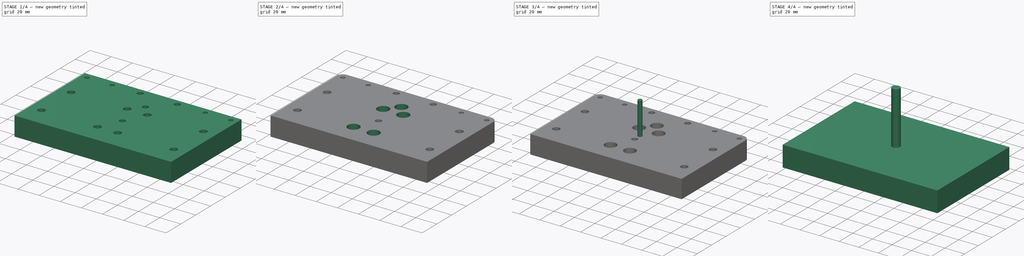
[diagram: build sequence overview — one tinted view per stage of 4, left to right]
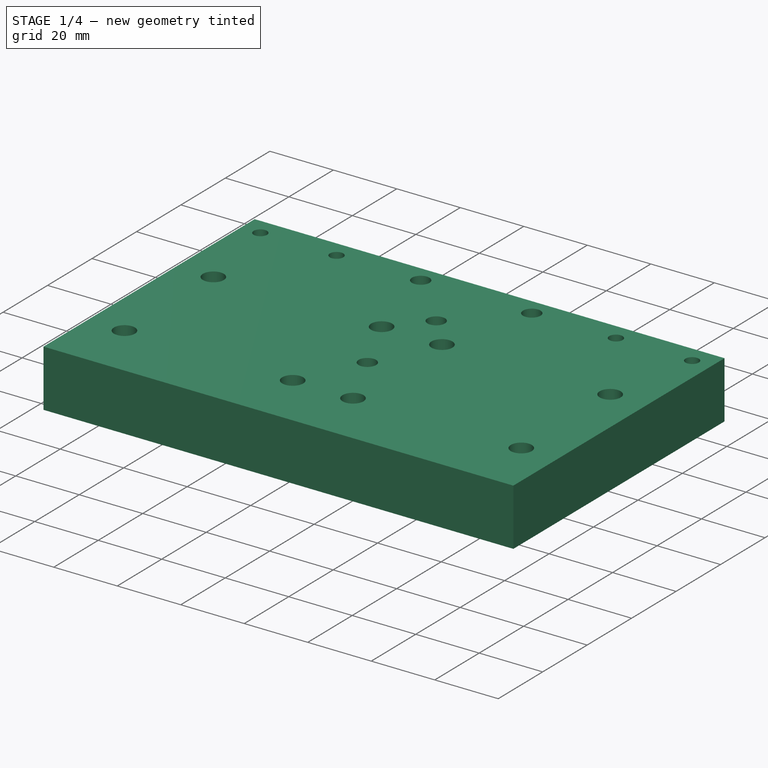
[diagram: stage 1 of 4 — iso view after this stage's code; geometry added in this stage tinted green]
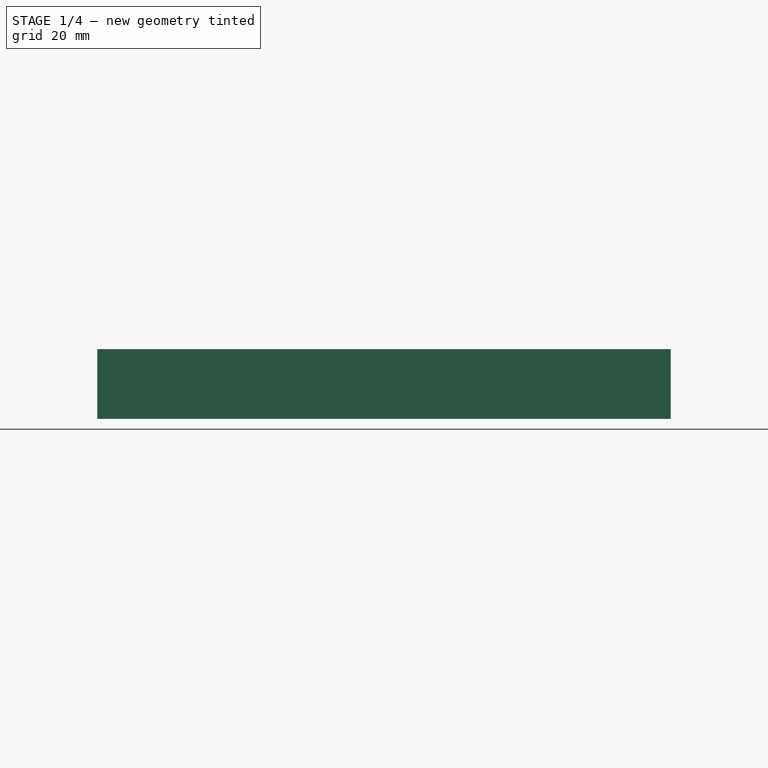
[diagram: stage 1 of 4 — front view after this stage's code; geometry added in this stage tinted green]
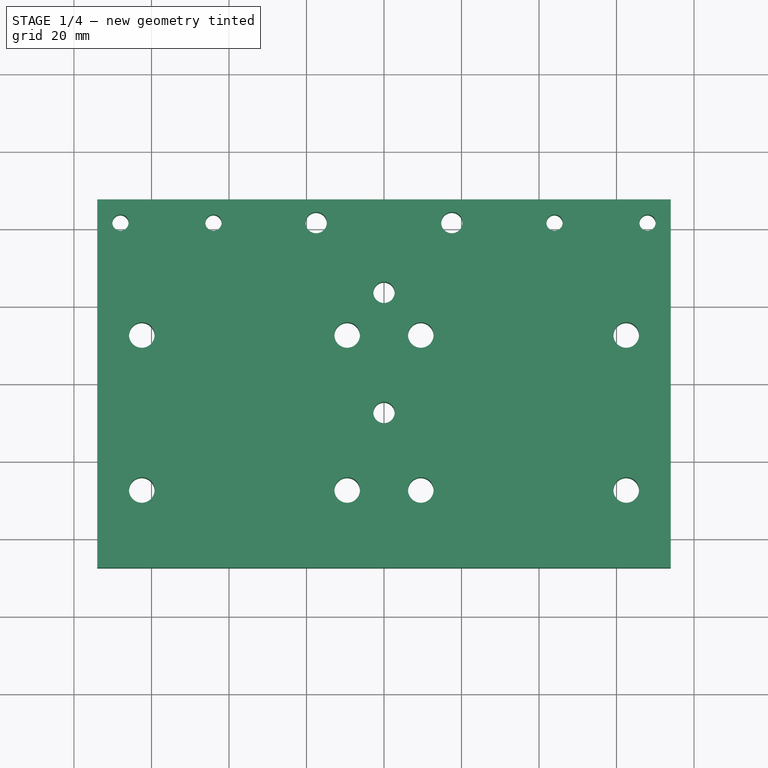
[diagram: stage 1 of 4 — top view after this stage's code; geometry added in this stage tinted green]
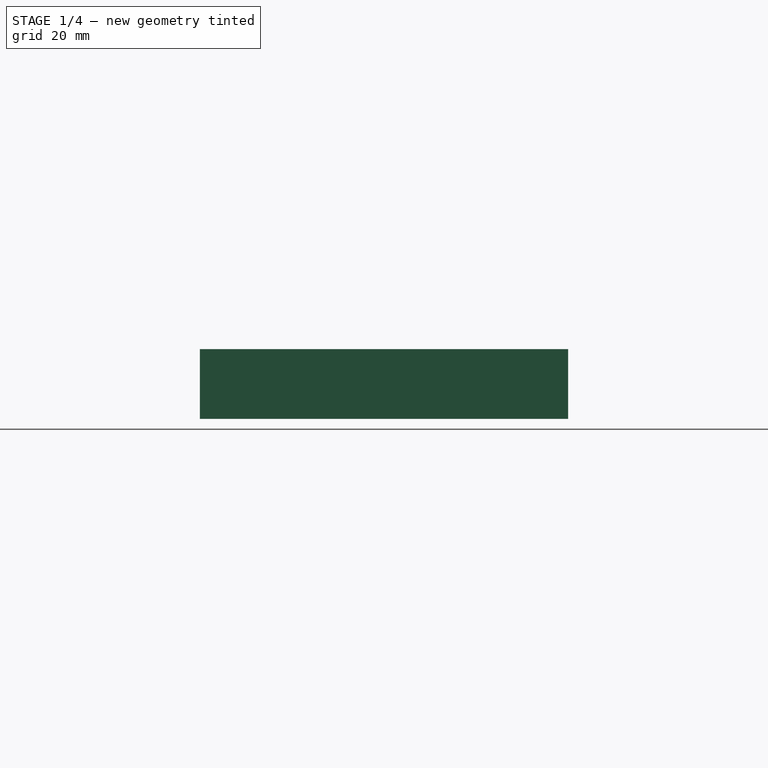
[diagram: stage 1 of 4 — right view after this stage's code; geometry added in this stage tinted green]
FCSTD DOCUMENT  (FreeCAD 0.20R27422 (Git))
Label: tram_plate_wood
License: All rights reserved
LicenseURL: http://en.wikipedia.org/wiki/All_rights_reserved
objects: Path::FeaturePython×10, Sketcher::SketchObject×4, Part::FeaturePython×4, PartDesign::Pocket×3, App::DocumentObjectGroup×2, PartDesign::Pad×1, App::FeaturePython×1, PartDesign::Fillet×1, PartDesign::Body×1, Path::FeatureCompoundPython×1
note: 22 computed .brp shape members not serialized (recipe doc carries the construction recipe); baked Part::Feature solids carry a one-line shape summary decoded from their .brp

FEATURE [Sketcher::SketchObject] Sketch
  FullyConstrained = true
  MapMode = 5
  Support = -> [XY_Plane]
  sketch-geometry (5):
    g0: LineSegment StartX=74 StartY=-47.5 StartZ=0 EndX=74 EndY=47.5 EndZ=0
    g1: LineSegment StartX=74 StartY=47.5 StartZ=0 EndX=-74 EndY=47.5 EndZ=0
    g2: LineSegment StartX=-74 StartY=47.5 StartZ=0 EndX=-74 EndY=-47.5 EndZ=0
    g3: LineSegment StartX=-74 StartY=-47.5 StartZ=0 EndX=74 EndY=-47.5 EndZ=0
    g4: GeomPoint X=1e-16 Y=0 Z=0
  constraints (12):
    c: Coincident(g0,g1)
    c: Coincident(g1,g2)
    c: Coincident(g2,g3)
    c: Coincident(g3,g0)
    c: Horizontal(g1)
    c: Horizontal(g3)
    c: Vertical(g0)
    c: Vertical(g2)
    c: Symmetric(g1,g0,g4)
    c: Coincident(g4,g-1)
    c: DistanceX(g1,g1) = 148
    c: DistanceY(g2,g2) = 95
FEATURE [PartDesign::Pad] Pad
  Direction = (0,0,1)
  Length = 18
  Length2 = 10
  Profile = -> Sketch
  ReferenceAxis = -> Sketch [N_Axis]
  Type = 0
FEATURE [Sketcher::SketchObject] Sketch001
  ExternalGeometry = -> [Pad]
  FullyConstrained = true
  MapMode = 5
  Placement = pos=(0,0,18) rot=(0,0,1;0rad)
  Support = -> [Pad]
  sketch-geometry (28):
    g0: Circle CenterX=-62.5 CenterY=12.5 CenterZ=0 NormalX=0 NormalY=0 NormalZ=1 AngleXU=0 Radius=3.3
    g1: Circle CenterX=-62.5 CenterY=-27.5 CenterZ=0 NormalX=0 NormalY=0 NormalZ=1 AngleXU=0 Radius=3.3
    g2: LineSegment StartX=-62.5 StartY=12.5 StartZ=0 EndX=-62.5 EndY=-27.5 EndZ=0
    g3: LineSegment StartX=-62.5 StartY=-27.5 StartZ=0 EndX=-62.5 EndY=-47.5 EndZ=0
    g4: LineSegment StartX=-74 StartY=-47.5 StartZ=0 EndX=-62.5 EndY=-47.5 EndZ=0
    g5: LineSegment StartX=0 StartY=0 StartZ=0 EndX=0 EndY=-47.5 EndZ=0
    g6: LineSegment StartX=-62.5 StartY=-27.5 StartZ=0 EndX=0 EndY=-27.5 EndZ=0
    g7: LineSegment StartX=0 StartY=0 StartZ=0 EndX=0 EndY=47.5 EndZ=0
    g8: LineSegment StartX=-62.5 StartY=12.5 StartZ=0 EndX=0 EndY=12.5 EndZ=0
    g9: LineSegment StartX=-9.5 StartY=12.5 StartZ=0 EndX=-9.5 EndY=-27.5 EndZ=0
    g10: Circle CenterX=-9.5 CenterY=12.5 CenterZ=0 NormalX=0 NormalY=0 NormalZ=1 AngleXU=0 Radius=3.3
    g11: Circle CenterX=-9.5 CenterY=-27.5 CenterZ=0 NormalX=0 NormalY=0 NormalZ=1 AngleXU=0 Radius=3.3
    g12: Circle CenterX=0 CenterY=-7.5 CenterZ=0 NormalX=0 NormalY=0 NormalZ=1 AngleXU=0 Radius=2.75
    g13: Circle CenterX=0 CenterY=23.5 CenterZ=0 NormalX=0 NormalY=0 NormalZ=1 AngleXU=0 Radius=2.75
    g14: LineSegment StartX=-68 StartY=41.5 StartZ=0 EndX=-44 EndY=41.5 EndZ=0
    g15: LineSegment StartX=-44 StartY=41.5 StartZ=0 EndX=-17.5 EndY=41.5 EndZ=0
    g16: Circle CenterX=-68 CenterY=41.5 CenterZ=0 NormalX=0 NormalY=0 NormalZ=1 AngleXU=0 Radius=2.1
    g17: Circle CenterX=-44 CenterY=41.5 CenterZ=0 NormalX=0 NormalY=0 NormalZ=1 AngleXU=0 Radius=2.1
    g18: Circle CenterX=-17.5 CenterY=41.5 CenterZ=0 NormalX=0 NormalY=0 NormalZ=1 AngleXU=0 Radius=2.75
    g19: LineSegment StartX=-44 StartY=41.5 StartZ=0 EndX=-44 EndY=47.5 EndZ=0
    g20: LineSegment StartX=-17.5 StartY=41.5 StartZ=0 EndX=0 EndY=41.5 EndZ=0
    g21: Circle CenterX=9.5 CenterY=-27.5 CenterZ=0 NormalX=0 NormalY=0 NormalZ=1 AngleXU=0 Radius=3.3
    g22: Circle CenterX=9.5 CenterY=12.5 CenterZ=0 NormalX=0 NormalY=0 NormalZ=1 AngleXU=0 Radius=3.3
    g23: Circle CenterX=17.5 CenterY=41.5 CenterZ=0 NormalX=0 NormalY=0 NormalZ=1 AngleXU=0 Radius=2.75
    g24: Circle CenterX=44 CenterY=41.5 CenterZ=0 NormalX=0 NormalY=0 NormalZ=1 AngleXU=0 Radius=2.1
    g25: Circle CenterX=68 CenterY=41.5 CenterZ=0 NormalX=0 NormalY=0 NormalZ=1 AngleXU=0 Radius=2.1
    g26: Circle CenterX=62.5 CenterY=12.5 CenterZ=0 NormalX=0 NormalY=0 NormalZ=1 AngleXU=0 Radius=3.3
    g27: Circle CenterX=62.5 CenterY=-27.5 CenterZ=0 NormalX=0 NormalY=0 NormalZ=1 AngleXU=0 Radius=3.3
  constraints (73):
    c: Coincident(g2,g0)
    c: Coincident(g2,g1)
    c: Vertical(g2)
    c: Equal(g0,g1)
    c: Diameter(g1) = 6.6
    c: Coincident(g3,g1)
    c: Vertical(g3)
    c: Coincident(g4,g-4)
    c: Coincident(g4,g3)
    c: Horizontal(g4)
    c: DistanceY(g3,g3) = 20
    c: Coincident(g5,g-1)
    c: PointOnObject(g5,g-3)
    c: Vertical(g5)
    c: DistanceX(g3,g5) = 62.5
    c: Coincident(g6,g1)
    c: PointOnObject(g6,g5)
    c: Horizontal(g6)
    c: PointOnObject(g7,g5)
    c: Vertical(g7)
    c: Coincident(g8,g0)
    c: PointOnObject(g8,g7)
    c: Horizontal(g8)
    c: PointOnObject(g9,g8)
    c: PointOnObject(g9,g6)
    c: Vertical(g9)
    c: Coincident(g10,g9)
    c: Coincident(g11,g9)
    c: Equal(g10,g0)
    c: Equal(g11,g1)
    c: DistanceX(g9,g6) = 9.5
    c: DistanceY(g9,g9) = 40
    c: PointOnObject(g12,g5)
    c: Diameter(g12) = 5.5
    c: DistanceY(g5,g12) = 40
    c: PointOnObject(g13,g7)
    c: Equal(g13,g12)
    c: DistanceY(g13,g7) = 24
    c: Horizontal(g14)
    c: Coincident(g15,g14)
    c: Horizontal(g15)
    c: Coincident(g16,g14)
    c: Coincident(g17,g14)
    c: Coincident(g18,g15)
    c: Diameter(g16) = 4.2
    c: Equal(g17,g16)
    c: Equal(g18,g13)
    c: DistanceX(g14,g14) = 24
    c: DistanceX(g15,g15) = 26.5
    c: Coincident(g19,g14)
    c: PointOnObject(g19,g-6)
    c: Vertical(g19)
    c: DistanceY(g19,g19) = 6
    c: Coincident(g20,g15)
    c: PointOnObject(g20,g7)
    c: Horizontal(g20)
    c: DistanceX(g14,g20) = 68
    c: PointOnObject(g7,g-6)
    c: Horizontal(g5,g7)
    c: Symmetric(g11,g21,g5)
    c: Equal(g11,g21)
    c: Symmetric(g22,g10,g7)
    c: Equal(g22,g10)
    c: Equal(g27,g26)
    c: Equal(g26,g22)
    c: Equal(g23,g18)
    c: Equal(g24,g25)
    c: Equal(g25,g17)
    c: Symmetric(g23,g18,g7)
    c: Symmetric(g24,g17,g7)
    c: Symmetric(g25,g16,g7)
    c: Symmetric(g26,g0,g7)
    c: Symmetric(g27,g1,g5)
FEATURE [PartDesign::Pocket] Pocket
  BaseFeature = -> Pad
  Direction = (0,0,-1)
  Length = 18
  Length2 = 5
  Profile = -> Sketch001
  ReferenceAxis = -> Sketch001 [N_Axis]
  Type = 1
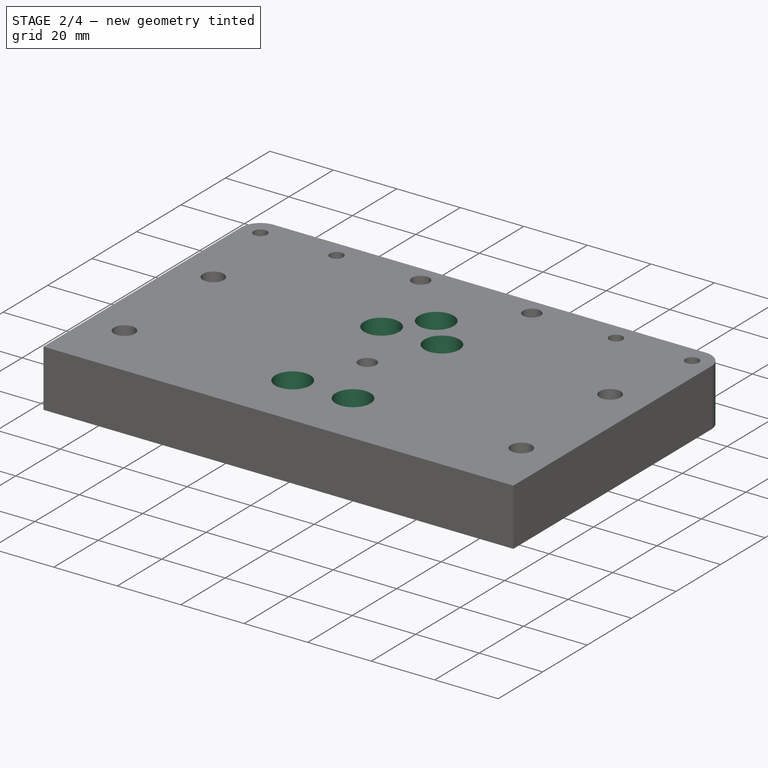
[diagram: stage 2 of 4 — iso view after this stage's code; geometry added in this stage tinted green]
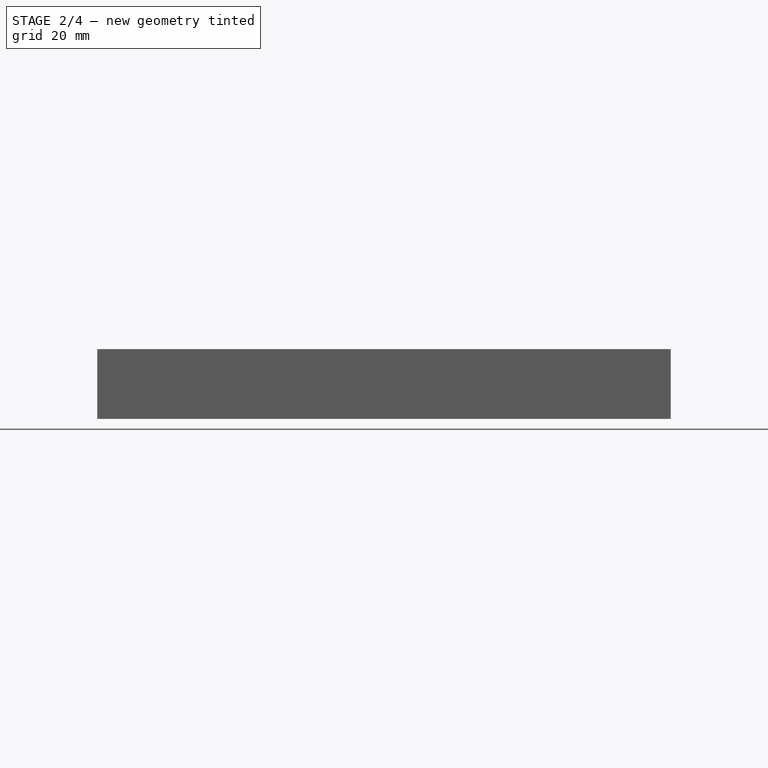
[diagram: stage 2 of 4 — front view after this stage's code; geometry added in this stage tinted green]
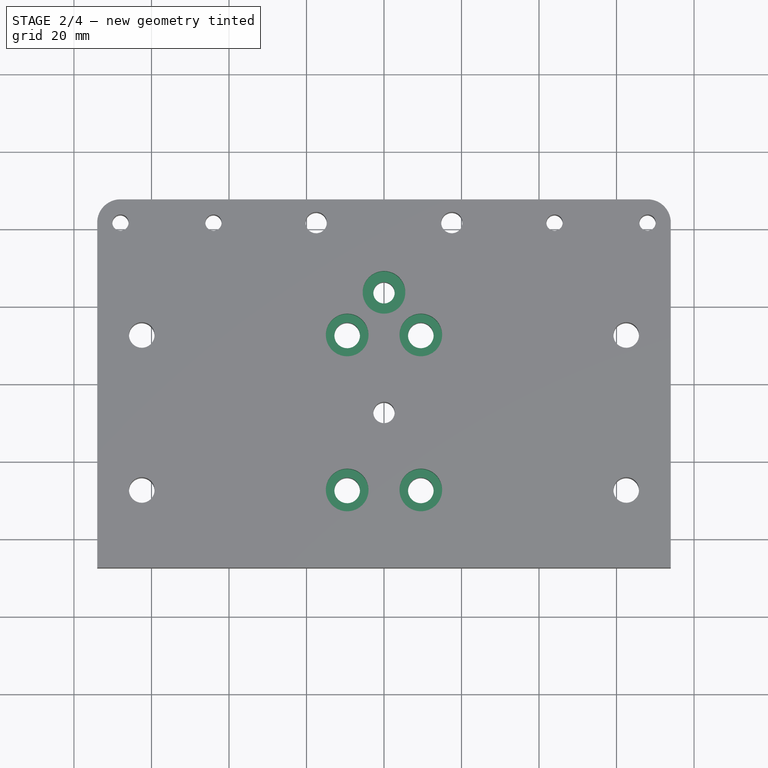
[diagram: stage 2 of 4 — top view after this stage's code; geometry added in this stage tinted green]
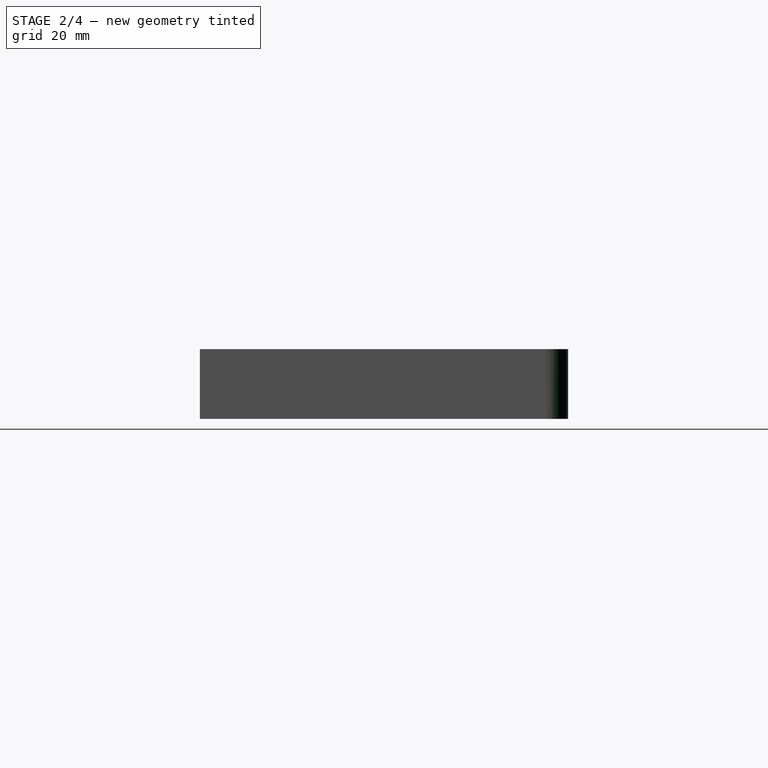
[diagram: stage 2 of 4 — right view after this stage's code; geometry added in this stage tinted green]
FEATURE [Sketcher::SketchObject] Sketch002
  FullyConstrained = false
  MapMode = 5
  Placement = pos=(0,0,18) rot=(0,0,1;0rad)
  sketch-geometry (5):
    g0: Circle CenterX=-9.5 CenterY=12.5 CenterZ=0 NormalX=0 NormalY=0 NormalZ=1 AngleXU=0 Radius=5.5
    g1: Circle CenterX=9.5 CenterY=12.5 CenterZ=0 NormalX=0 NormalY=0 NormalZ=1 AngleXU=0 Radius=5.5
    g2: Circle CenterX=-9.5 CenterY=-27.5 CenterZ=0 NormalX=0 NormalY=0 NormalZ=1 AngleXU=0 Radius=5.5
    g3: Circle CenterX=9.5 CenterY=-27.5 CenterZ=0 NormalX=0 NormalY=0 NormalZ=1 AngleXU=0 Radius=5.5
    g4: Circle CenterX=0 CenterY=23.5 CenterZ=0 NormalX=0 NormalY=0 NormalZ=1 AngleXU=0 Radius=5.5
  constraints (5):
    c: Equal(g4,g0)
    c: Equal(g0,g1)
    c: Equal(g1,g3)
    c: Equal(g3,g2)
    c: Diameter(g0) = 11
FEATURE [PartDesign::Pocket] Pocket001
  BaseFeature = -> Pocket
  Direction = (0,0,-1)
  Length = 6.8
  Length2 = 5
  Profile = -> Sketch002
  ReferenceAxis = -> Sketch002 [N_Axis]
  Type = 0
FEATURE [Path::FeaturePython] _mm_endmill  label="4mm_endmill001"  # Path/CAM operation (typed FeaturePython)
  HorizFeed = 7.28333
  HorizRapid = 0
  SpindleDir = 0
  SpindleSpeed = 20000
  Tool = -> ToolBit001
  ToolNumber = 2
  VertFeed = 7.28333
  VertRapid = 0
  expr: HorizRapid = SetupSheet.HorizRapid
  expr: VertRapid = SetupSheet.VertRapid
FEATURE [Path::FeaturePython] _mm_endmill001  label="8mm_endmill001"  # Path/CAM operation (typed FeaturePython)
  HorizFeed = 7.28333
  HorizRapid = 0
  SpindleDir = 0
  SpindleSpeed = 20000
  Tool = -> ToolBit002
  ToolNumber = 3
  VertFeed = 7.28333
  VertRapid = 0
  expr: HorizRapid = SetupSheet.HorizRapid
  expr: VertRapid = SetupSheet.VertRapid
FEATURE [App::DocumentObjectGroup] Tools
  Group = -> [_mm_endmill,_mm_endmill001]
FEATURE [PartDesign::Fillet] Fillet
  Base = -> Pocket001 [Edge8,Edge2]
  BaseFeature = -> Pocket001
  Radius = 6
  SupportTransform = false
  UseAllEdges = false
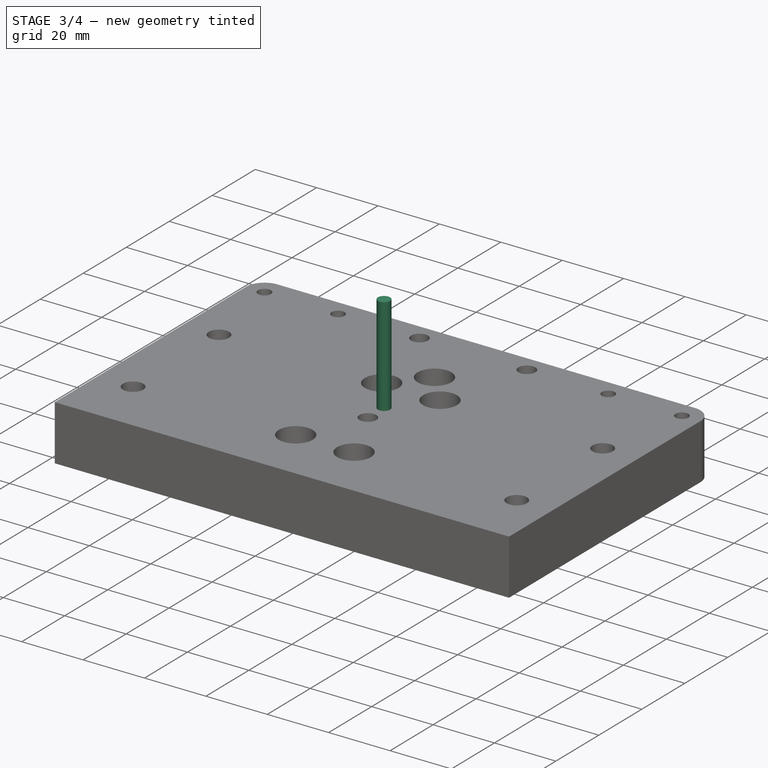
[diagram: stage 3 of 4 — iso view after this stage's code; geometry added in this stage tinted green]
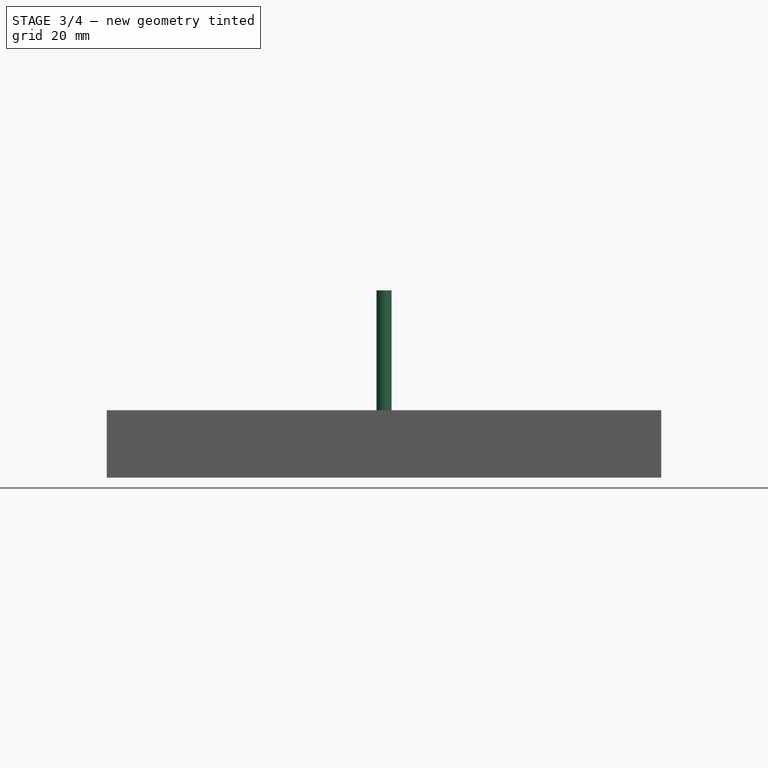
[diagram: stage 3 of 4 — front view after this stage's code; geometry added in this stage tinted green]
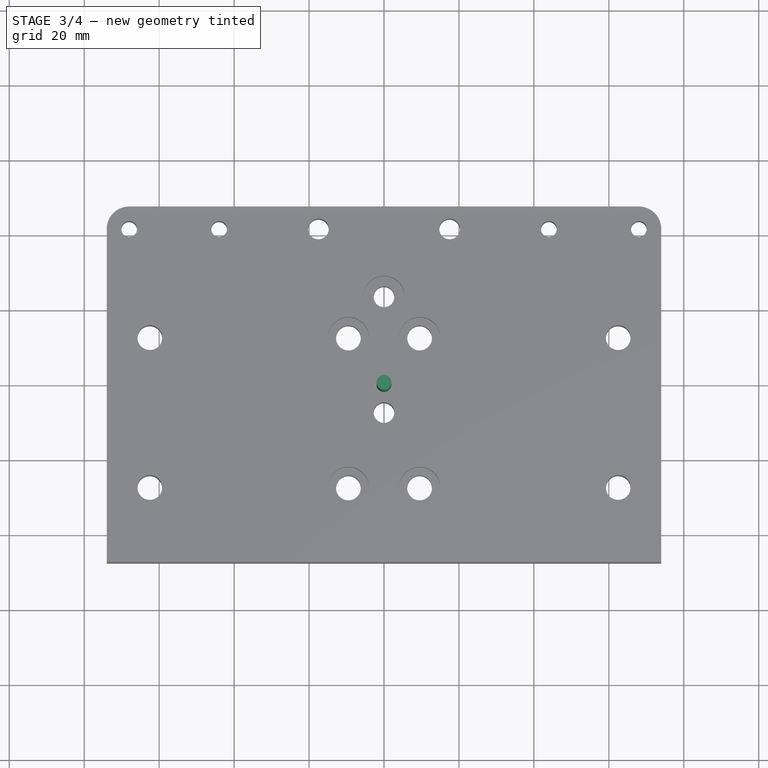
[diagram: stage 3 of 4 — top view after this stage's code; geometry added in this stage tinted green]
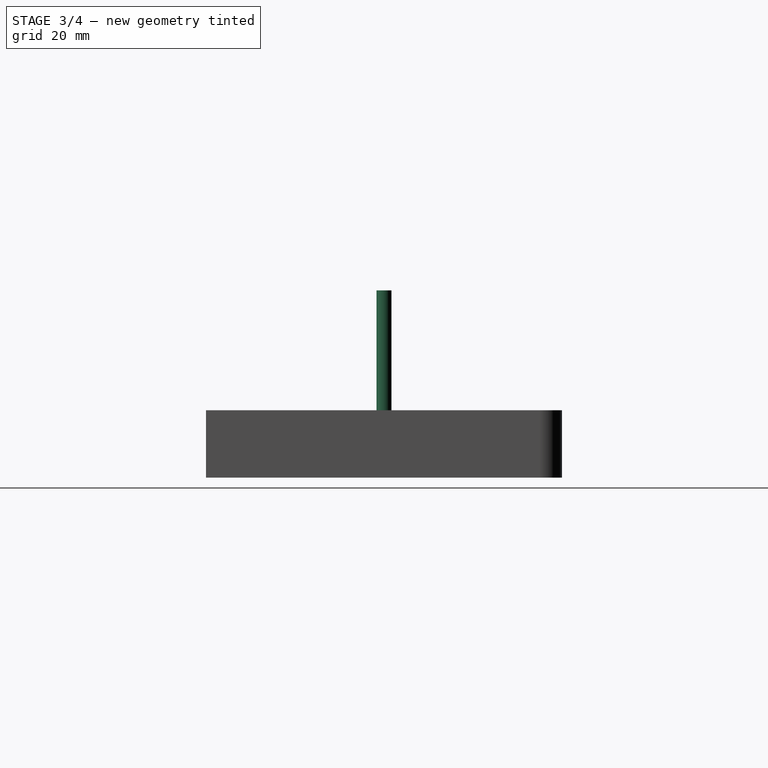
[diagram: stage 3 of 4 — right view after this stage's code; geometry added in this stage tinted green]
FEATURE [App::FeaturePython] SetupSheet  # Path/CAM operation (typed FeaturePython)
  ClearanceHeightExpression = OpStockZMax+SetupSheet.ClearanceHeightOffset
  ClearanceHeightOffset = 5
  CoolantMode = 0
  CoolantModes = None | Flood | Mist
  FinalDepthExpression = OpFinalDepth
  HorizRapid = 0
  SafeHeightExpression = OpStockZMax+SetupSheet.SafeHeightOffset
  SafeHeightOffset = 3
  StartDepthExpression = OpStartDepth
  StepDownExpression = OpToolDiameter
  VertRapid = 0
FEATURE [Part::FeaturePython] ToolBit001  label="4mm_endmill"  # Path/CAM toolbit (typed FeaturePython)
  BitPropertyNames = Chipload | CuttingEdgeHeight | Diameter | Flutes | Length | Material | ShankDiameter
  BitShape = C:/Program Files/FreeCAD 0.20/Mod\Path\Tools\Shape\endmill.fcstd
  Chipload = 0
  CuttingEdgeHeight = 15
  Diameter = 4
  File = <userpath>/AppData/Roaming/FreeCAD/Macro/Bit/4mm_endmill.fctb
  Flutes = 0
  Length = 50
  Material = 0
  ShankDiameter = 4
  ShapeName = endmill
FEATURE [Sketcher::SketchObject] Sketch003
  ExternalGeometry = -> [Fillet]
  FullyConstrained = false
  MapMode = 5
  Placement = pos=(0,0,18) rot=(0,0,1;0rad)
  Support = -> [Fillet]
  sketch-geometry (2):
    g0: Circle CenterX=0 CenterY=-7.5 CenterZ=0 NormalX=0 NormalY=0 NormalZ=1 AngleXU=0 Radius=2.75
    g1: Circle CenterX=0 CenterY=23.5 CenterZ=0 NormalX=0 NormalY=0 NormalZ=1 AngleXU=0 Radius=2.75
  constraints (1):
    c: Equal(g1,g0)
FEATURE [PartDesign::Pocket] Pocket002
  BaseFeature = -> Fillet
  Direction = (0,0,-1)
  Length = 5
  Length2 = 5
  Profile = -> Sketch003
  ReferenceAxis = -> Sketch003 [N_Axis]
  Type = 1
FEATURE [PartDesign::Body] Body
  Group = -> [Sketch,Pad,Sketch001,Pocket,Sketch002,Pocket001,Fillet,Sketch003,Pocket002]
  Origin = -> Origin
  Tip = -> Pocket002
FEATURE [Part::FeaturePython] Clone  label="Model-Body"  # Draft clone (typed FeaturePython)
  AttacherType = Attacher::AttachEngine3D
  Fuse = false
  Objects = -> [Body]
  PathResource = Model
  Scale = (1,1,1)
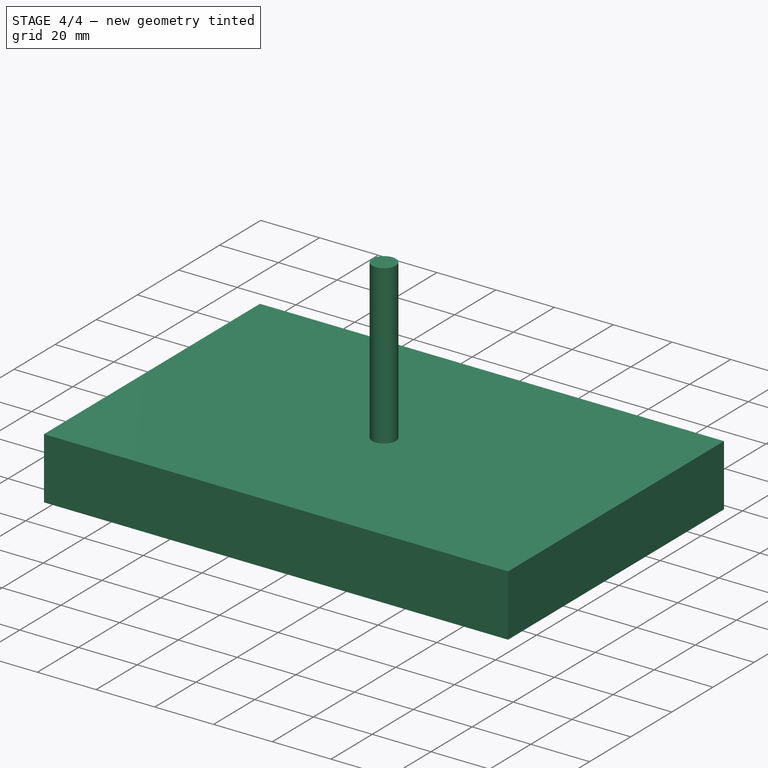
[diagram: stage 4 of 4 — iso view after this stage's code; geometry added in this stage tinted green]
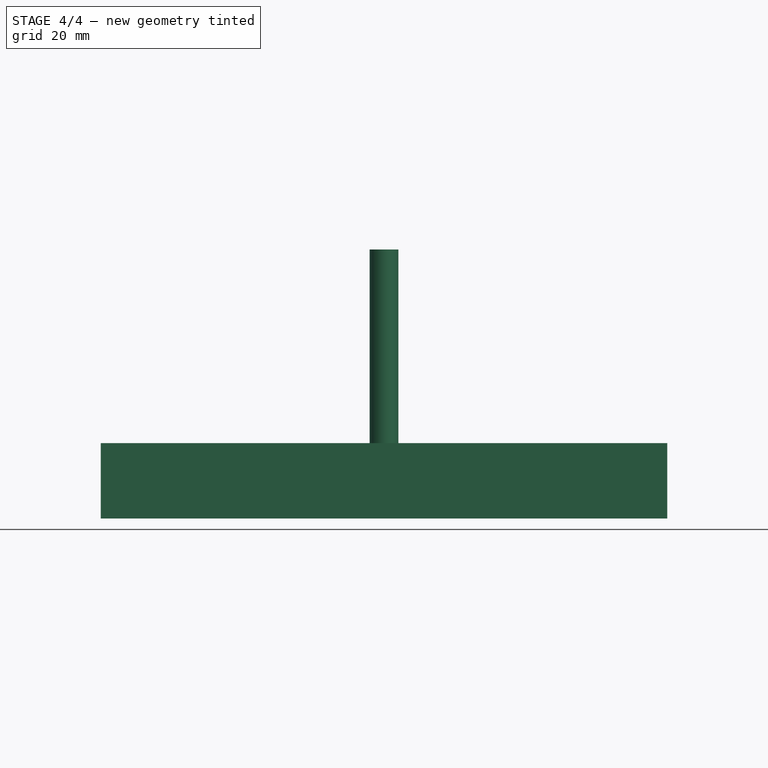
[diagram: stage 4 of 4 — front view after this stage's code; geometry added in this stage tinted green]
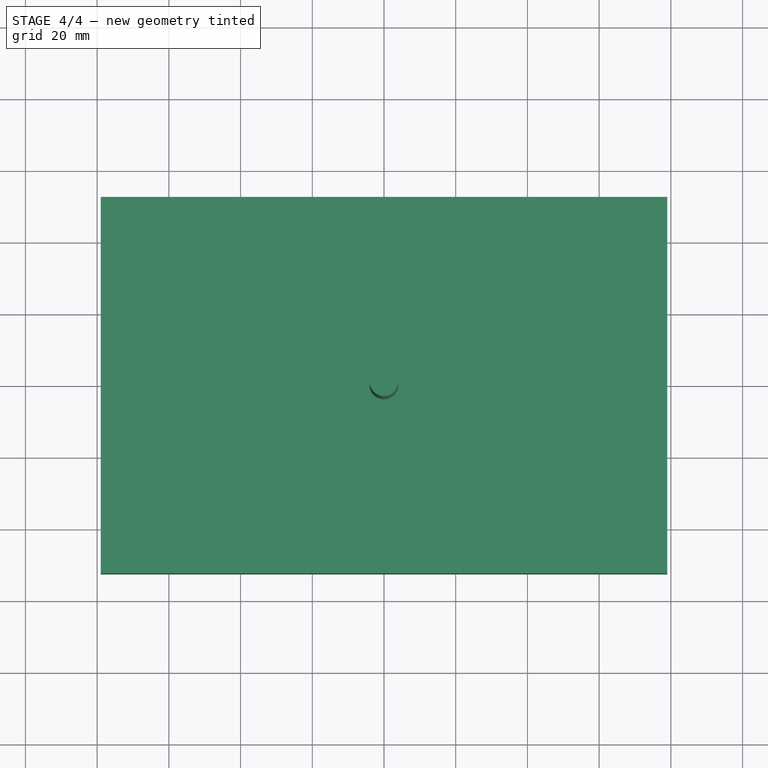
[diagram: stage 4 of 4 — top view after this stage's code; geometry added in this stage tinted green]
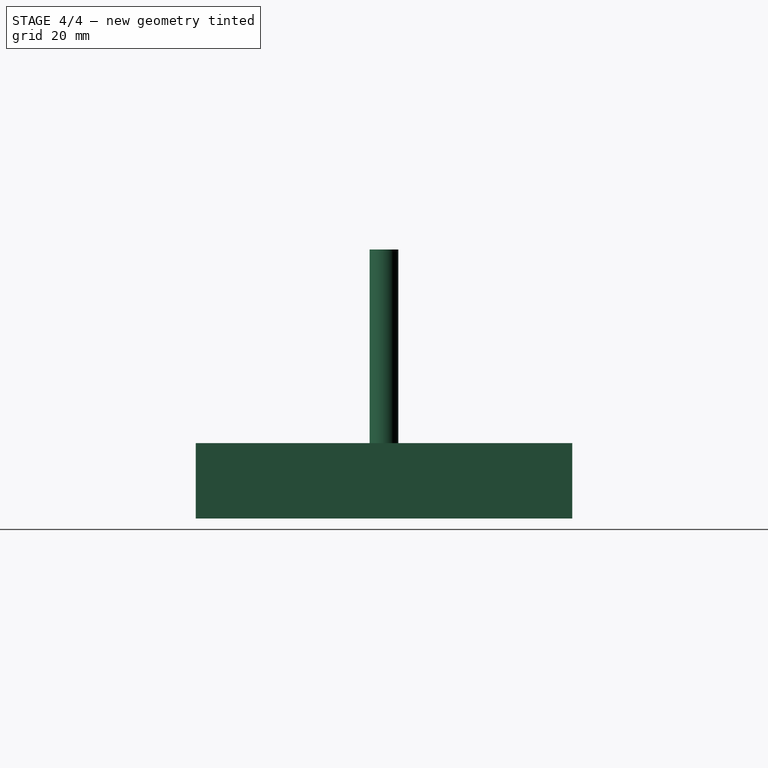
[diagram: stage 4 of 4 — right view after this stage's code; geometry added in this stage tinted green]
FEATURE [Part::FeaturePython] ToolBit002  label="8mm_endmill"  # Path/CAM toolbit (typed FeaturePython)
  BitPropertyNames = Chipload | CuttingEdgeHeight | Diameter | Flutes | Length | Material | ShankDiameter
  BitShape = C:/Program Files/FreeCAD 0.20/Mod\Path\Tools\Shape\endmill.fcstd
  Chipload = 0
  CuttingEdgeHeight = 32
  Diameter = 8
  File = <userpath>/AppData/Roaming/FreeCAD/Macro/Bit/8mm_endmill.fctb
  Flutes = 0
  Length = 75
  Material = 0
  ShankDiameter = 8
  ShapeName = endmill
FEATURE [App::DocumentObjectGroup] Model
  Group = -> [Clone]
FEATURE [Part::FeaturePython] Stock  # WARN: FeaturePython — macro-defined, semantics opaque (R4)
  Base = -> Model
  ExtXneg = 5
  ExtXpos = 5
  ExtYneg = 5
  ExtYpos = 5
  ExtZneg = 0
  ExtZpos = 3
  Placement = pos=(-74,-47.5,0) rot=(0,0,1;0rad)
  StockType = FromBase
FEATURE [Path::FeaturePython] MillFace  # Path/CAM operation (typed FeaturePython)
  Active = true
  AreaParams:
    Tolerance = 1e-07
    FitArcs = True
    Simplify = False
    CleanDistance = 0.0
    Accuracy = 0.01
    Unit = 1.0
    MinArcPoints = 4
    MaxArcPoints = 100
    ClipperScale = 10000000.0
    Fill = 0
    Coplanar = 0
    Reorient = True
    Outline = False
    Explode = False
    OpenMode = 0
    Deflection = 0.01
    SubjectFill = 0
    ClipFill = 0
    Offset = 0.0
    ExtraPass = 0
    Stepover = 0.0
    LastStepover = 0.0
    JoinType = 0
    EndType = 0
    MiterLimit = 2.0
    RoundPrecision = 0.0
    PocketMode = 4
    ToolRadius = 4.0
    PocketExtraOffset = -2.0
    PocketStepover = 4.0
    PocketLastStepover = 0.0
    FromCenter = True
    Angle = 45.0
    AngleShift = 0.0
    Shift = 0.0
    Thicken = False
    SectionCount = -1
    Stepdown = 1.0
    SectionOffset = 0.0
    SectionTolerance = 1e-06
    SectionMode = 2
    Project = False
  Base = -> [Clone]
  BoundaryShape = 0
  ClearEdges = false
  ClearanceHeight = 26
  CoolantMode = 0
  CutMode = 0
  CycleTime = 00:09:24
  ExcludeRaisedAreas = false
  ExtraOffset = 2
  FinalDepth = 18
  FinishDepth = 0
  KeepToolDown = false
  MinTravel = false
  OffsetPattern = 3
  OpFinalDepth = 18
  OpStartDepth = 21
  OpStockZMax = 21
  OpStockZMin = 0
  OpToolDiameter = 8
  PathParams = {'orientation': 1, 'feedrate': 7.283333333333333, 'feedrate_v': 7.283333333333333, 'verbose': True, 'resume_height': 24.0, 'retraction': 26.0, 'return_end': True, 'preamble': False}
  SafeHeight = 24
  SplitArcs = false
  StartAt = 0
  StartDepth = 21
  StartPoint = (0,0,0)
  StepDown = 8
  StepOver = 50
  ToolController = -> _mm_endmill001
  UseStartPoint = false
  ZigZagAngle = 45
  expr: ClearanceHeight = OpStockZMax + SetupSheet.ClearanceHeightOffset
  expr: FinalDepth = OpFinalDepth
  expr: SafeHeight = OpStockZMax + SetupSheet.SafeHeightOffset
  expr: StartDepth = OpStartDepth
  expr: StepDown = OpToolDiameter
FEATURE [Path::FeaturePython] Profile  # Path/CAM operation (typed FeaturePython)
  Active = true
  AreaParams:
    Tolerance = 1e-07
    FitArcs = True
    Simplify = False
    CleanDistance = 0.0
    Accuracy = 0.01
    Unit = 1.0
    MinArcPoints = 4
    MaxArcPoints = 100
    ClipperScale = 10000000.0
    Fill = 0
    Coplanar = 0
    Reorient = True
    Outline = False
    Explode = False
    OpenMode = 0
    Deflection = 0.01
    SubjectFill = 0
    ClipFill = 0
    Offset = 4.5
    ExtraPass = 0
    Stepover = 0.0
    LastStepover = 0.0
    JoinType = 0
    EndType = 0
    MiterLimit = 2.0
    RoundPrecision = 0.0
    PocketMode = 0
    ToolRadius = 1.0
    PocketExtraOffset = 0.0
    PocketStepover = 0.0
    PocketLastStepover = 0.0
    FromCenter = False
    Angle = 45.0
    AngleShift = 0.0
    Shift = 0.0
    Thicken = False
    SectionCount = -1
    Stepdown = 1.0
    SectionOffset = 0.0
    SectionTolerance = 1e-06
    SectionMode = 2
    Project = False
  Base = -> [Clone]
  ClearanceHeight = 26
  CoolantMode = 0
  CycleTime = 00:03:50
  Direction = 0
  FinalDepth = 1
  HandleMultipleFeatures = 0
  JoinType = 0
  MiterLimit = 0.1
  OffsetExtra = 0.5
  OpFinalDepth = 0
  OpStartDepth = 21
  OpStockZMax = 21
  OpStockZMin = 0
  OpToolDiameter = 8
  PathParams = {'orientation': 1, 'feedrate': 7.283333333333333, 'feedrate_v': 7.283333333333333, 'verbose': True, 'resume_height': 24.0, 'retraction': 26.0, 'return_end': True, 'preamble': False}
  SafeHeight = 24
  Side = 0
  SplitArcs = false
  StartDepth = 21
  StartPoint = (0,0,0)
  StepDown = 8
  ToolController = -> _mm_endmill001
  UseComp = true
  UseStartPoint = false
  processCircles = false
  processHoles = false
  processPerimeter = true
  expr: ClearanceHeight = OpStockZMax + SetupSheet.ClearanceHeightOffset
  expr: FinalDepth = 1mm
  expr: SafeHeight = OpStockZMax + SetupSheet.SafeHeightOffset
  expr: StartDepth = OpStartDepth
  expr: StepDown = OpToolDiameter
FEATURE [Path::FeaturePython] Profile001  # Path/CAM operation (typed FeaturePython)
  Active = true
  AreaParams:
    Tolerance = 1e-07
    FitArcs = True
    Simplify = False
    CleanDistance = 0.0
    Accuracy = 0.01
    Unit = 1.0
    MinArcPoints = 4
    MaxArcPoints = 100
    ClipperScale = 10000000.0
    Fill = 0
    Coplanar = 0
    Reorient = True
    Outline = False
    Explode = False
    OpenMode = 0
    Deflection = 0.01
    SubjectFill = 0
    ClipFill = 0
    Offset = 4.0
    ExtraPass = 0
    Stepover = 0.0
    LastStepover = 0.0
    JoinType = 0
    EndType = 0
    MiterLimit = 2.0
    RoundPrecision = 0.0
    PocketMode = 0
    ToolRadius = 1.0
    PocketExtraOffset = 0.0
    PocketStepover = 0.0
    PocketLastStepover = 0.0
    FromCenter = False
    Angle = 45.0
    AngleShift = 0.0
    Shift = 0.0
    Thicken = False
    SectionCount = -1
    Stepdown = 1.0
    SectionOffset = 0.0
    SectionTolerance = 1e-06
    SectionMode = 2
    Project = False
  Base = -> [Clone]
  ClearanceHeight = 26
  CoolantMode = 0
  CycleTime = 00:01:31
  Direction = 0
  FinalDepth = 0
  HandleMultipleFeatures = 0
  JoinType = 0
  MiterLimit = 0.1
  OffsetExtra = 0
  OpFinalDepth = 0
  OpStartDepth = 21
  OpStockZMax = 21
  OpStockZMin = 0
  OpToolDiameter = 8
  PathParams = {'orientation': 1, 'feedrate': 7.283333333333333, 'feedrate_v': 7.283333333333333, 'verbose': True, 'resume_height': 24.0, 'retraction': 26.0, 'return_end': True, 'preamble': False}
  SafeHeight = 24
  Side = 0
  SplitArcs = false
  StartDepth = 21
  StartPoint = (0,0,0)
  StepDown = 21
  ToolController = -> _mm_endmill001
  UseComp = true
  UseStartPoint = false
  processCircles = false
  processHoles = false
  processPerimeter = true
  expr: ClearanceHeight = OpStockZMax + SetupSheet.ClearanceHeightOffset
  expr: FinalDepth = OpFinalDepth
  expr: SafeHeight = OpStockZMax + SetupSheet.SafeHeightOffset
  expr: StartDepth = OpStartDepth
  expr: StepDown = 21
FEATURE [Path::FeaturePython] DressupTag  # Path/CAM operation (typed FeaturePython)
  Angle = 45
  Base = -> Profile001
  Height = 0.5
  Positions = (4) [(37,-51.5,0),(-37,-51.5,0),(-34.1682,51.4953,0),(33.9439,51.4984,0)]
  Radius = 0
  SegmentationFactor = 50
  Width = 14.8
FEATURE [Path::FeaturePython] Helix  # Path/CAM operation (typed FeaturePython)
  Active = true
  Base = -> [Clone]
  ClearanceHeight = 26
  CoolantMode = 0
  CycleTime = 00:01:40
  Direction = 0
  FinalDepth = 11.2
  OffsetExtra = 0
  OpFinalDepth = 11.2
  OpStartDepth = 21
  OpStockZMax = 21
  OpStockZMin = 0
  OpToolDiameter = 4
  SafeHeight = 24
  StartDepth = 21
  StartRadius = 0.1
  StartSide = 1
  StepDown = 4
  StepOver = 50
  ToolController = -> _mm_endmill
  expr: ClearanceHeight = OpStockZMax + SetupSheet.ClearanceHeightOffset
  expr: FinalDepth = OpFinalDepth
  expr: SafeHeight = OpStockZMax + SetupSheet.SafeHeightOffset
  expr: StartDepth = OpStartDepth
  expr: StepDown = OpToolDiameter
FEATURE [Path::FeaturePython] Helix001  # Path/CAM operation (typed FeaturePython)
  Active = true
  Base = -> [Clone]
  ClearanceHeight = 26
  CoolantMode = 0
  CycleTime = 00:03:24
  Direction = 0
  FinalDepth = 0
  OffsetExtra = 0
  OpFinalDepth = 0
  OpStartDepth = 21
  OpStockZMax = 21
  OpStockZMin = 0
  OpToolDiameter = 4
  SafeHeight = 24
  StartDepth = 21
  StartRadius = 0
  StartSide = 0
  StepDown = 4
  StepOver = 1
  ToolController = -> _mm_endmill
  expr: ClearanceHeight = OpStockZMax + SetupSheet.ClearanceHeightOffset
  expr: FinalDepth = OpFinalDepth
  expr: SafeHeight = OpStockZMax + SetupSheet.SafeHeightOffset
  expr: StartDepth = OpStartDepth
  expr: StepDown = OpToolDiameter
FEATURE [Path::FeatureCompoundPython] Operations  # Path/CAM operation (typed FeaturePython)
  Group = -> [MillFace,Helix,Helix001,Profile,DressupTag]
  UsePlacements = false
FEATURE [Path::FeaturePython] Job  # Path/CAM operation (typed FeaturePython)
  CycleTime = 00:19:49
  Fixtures = G54
  GeometryTolerance = 0.01
  JobType = 0
  Model = -> Model
  Operations = -> Operations
  OrderOutputBy = 0
  PostProcessor = 7
  SetupSheet = -> SetupSheet
  SplitOutput = false
  Stock = -> Stock
  Tools = -> Tools
FEATURE [Path::FeaturePython] RampEntryDressup  # Path/CAM operation (typed FeaturePython)
  Angle = 0
  CustomFeedRate = 0
  DressupStartDepth = 0
  Method = -1
  RampFeedRate = -1
  UseStartDepth = false
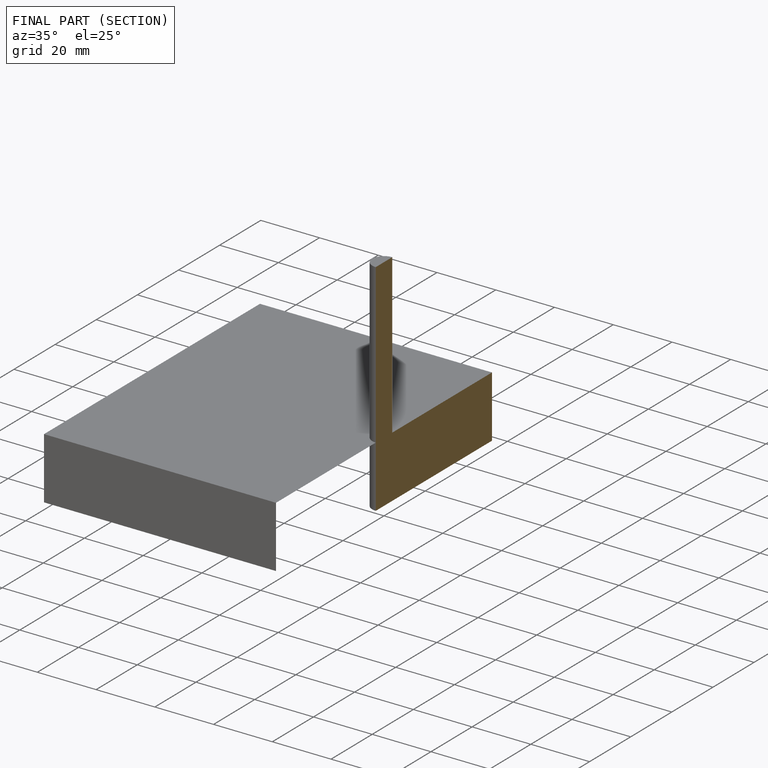
[diagram: finished part — half-section view (interior)]
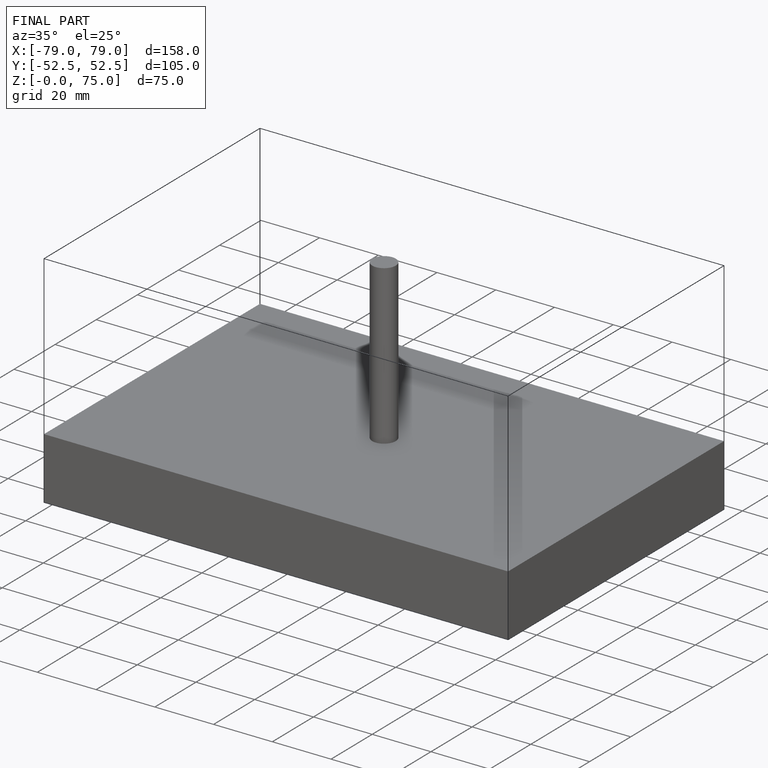
[diagram: finished part — iso view with bounding-box wireframe]
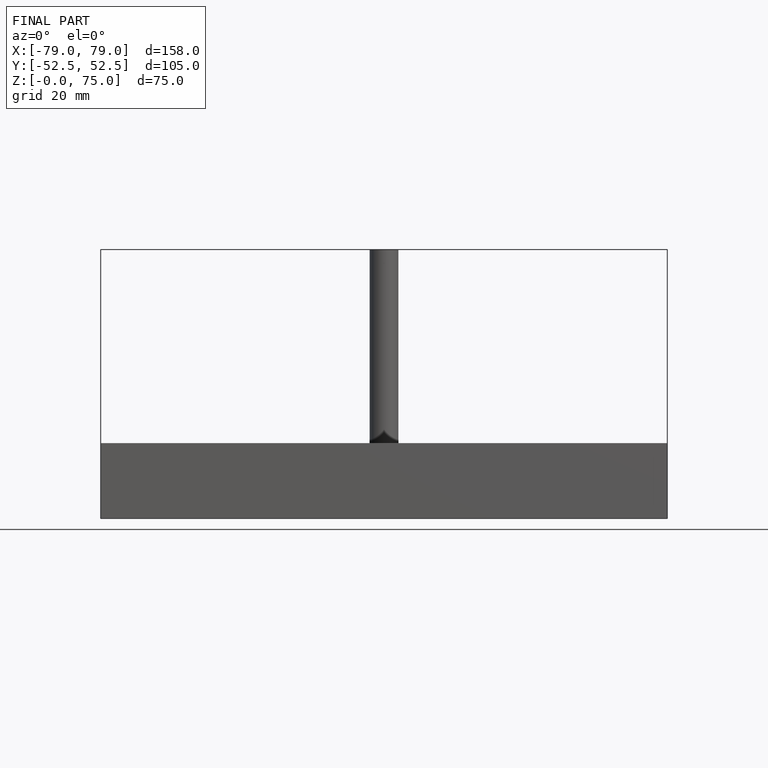
[diagram: finished part — front view with bounding-box wireframe]
